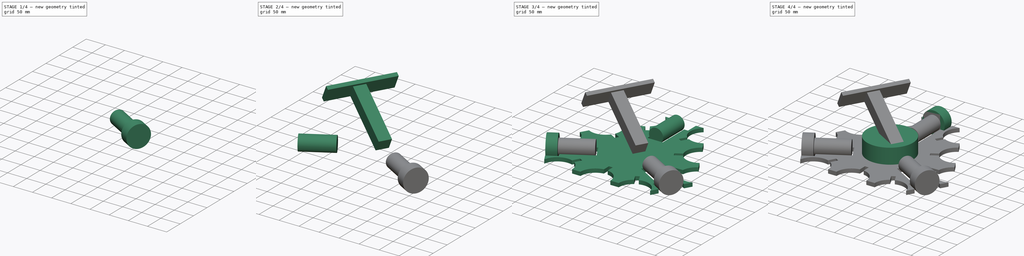
[diagram: build sequence overview — one tinted view per stage of 4, left to right]
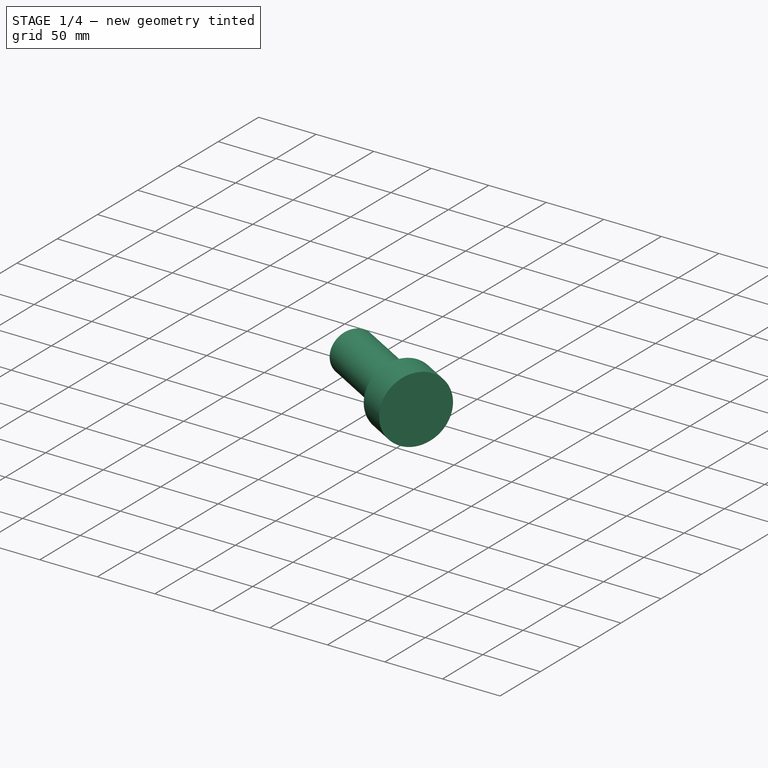
[diagram: stage 1 of 4 — iso view after this stage's code; geometry added in this stage tinted green]
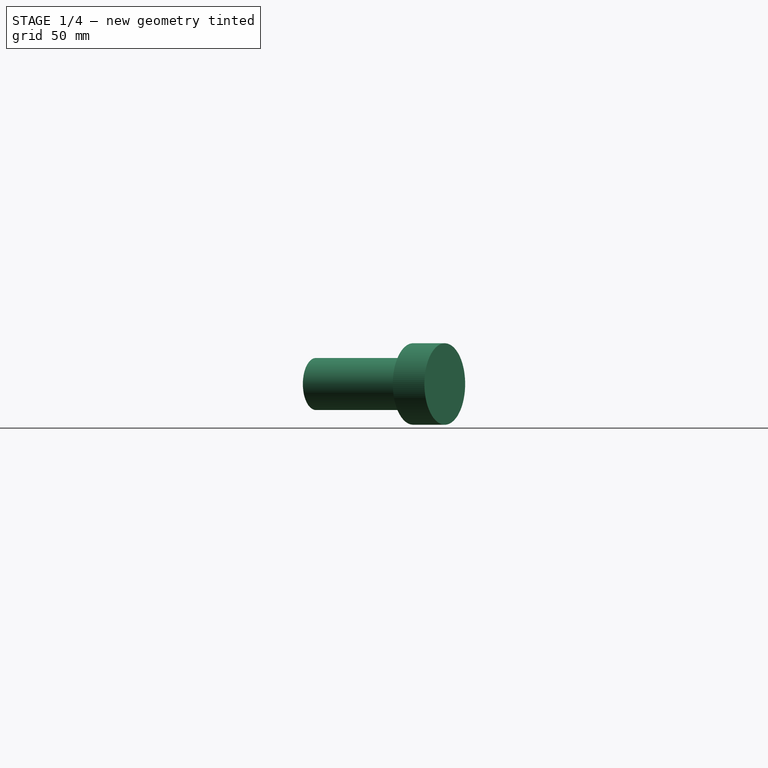
[diagram: stage 1 of 4 — front view after this stage's code; geometry added in this stage tinted green]
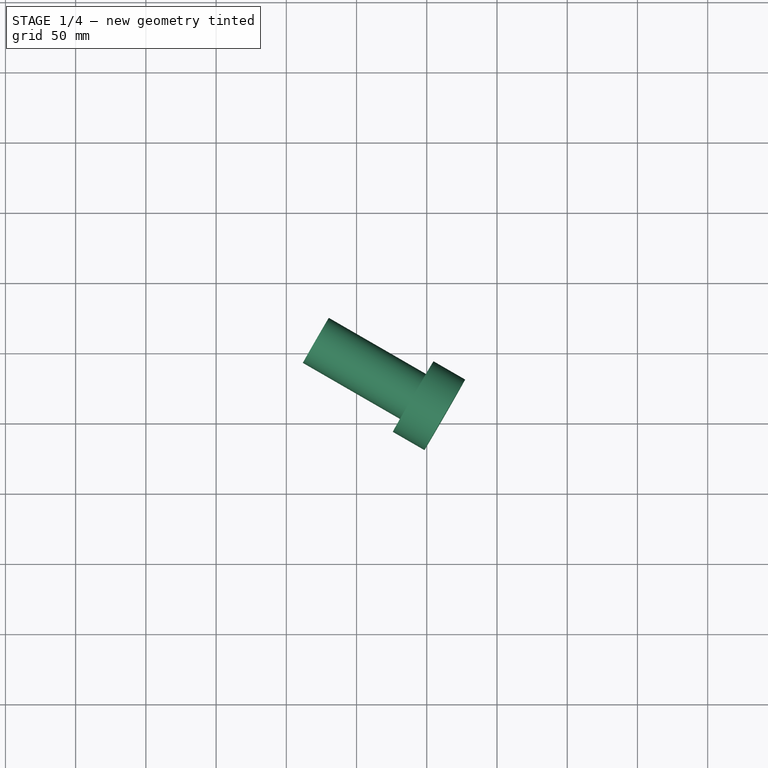
[diagram: stage 1 of 4 — top view after this stage's code; geometry added in this stage tinted green]
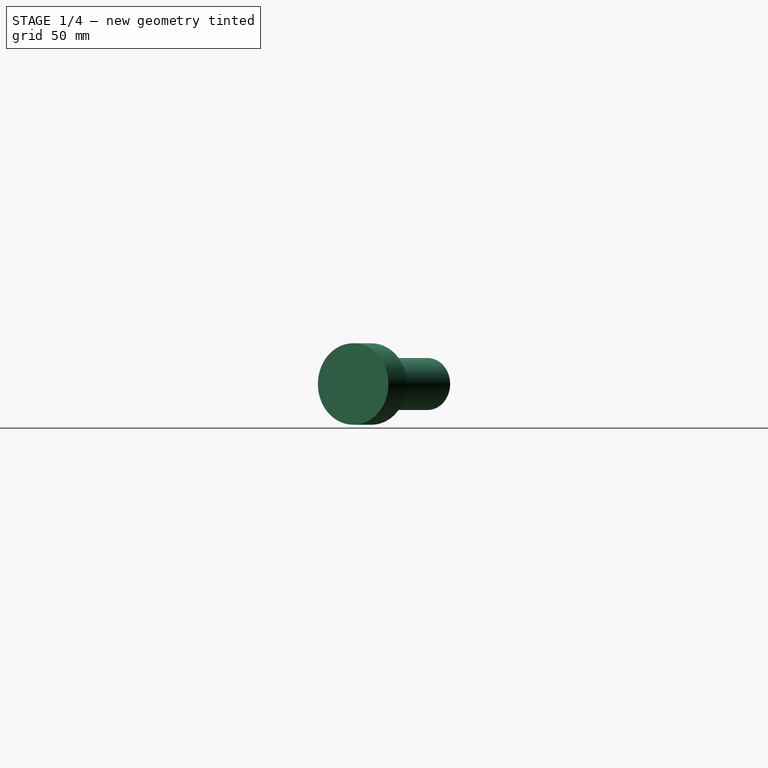
[diagram: stage 1 of 4 — right view after this stage's code; geometry added in this stage tinted green]
FCSTD DOCUMENT  (FreeCAD 0.17R13541 (Git))
Label: robot_principal_freecad
License: All rights reserved
LicenseURL: http://en.wikipedia.org/wiki/All_rights_reserved
objects: Part::Cylinder×7, Part::Feature×2, Part::Box×2, Sketcher::SketchObject×1, Part::Extrusion×1
note: 13 computed .brp shape members not serialized (recipe doc carries the construction recipe); baked Part::Feature solids carry a one-line shape summary decoded from their .brp

FEATURE [Part::Cylinder] Cylinder005  label="Roue002"
  Angle = 360
  AttacherType = Attacher::AttachEngine3D
  Height = 26
  Placement = pos=(162.812,-94.0007,28.9994) rot=(-0.377964,0.654652,0.654656;3.86432rad)
  Radius = 29
FEATURE [Part::Cylinder] Cylinder006  label="Moteur002"
  Angle = 360
  AttacherType = Attacher::AttachEngine3D
  Height = 80
  Placement = pos=(140.296,-81,29) rot=(-0.377964,0.654654,0.654654;3.86433rad)
  Radius = 18.5
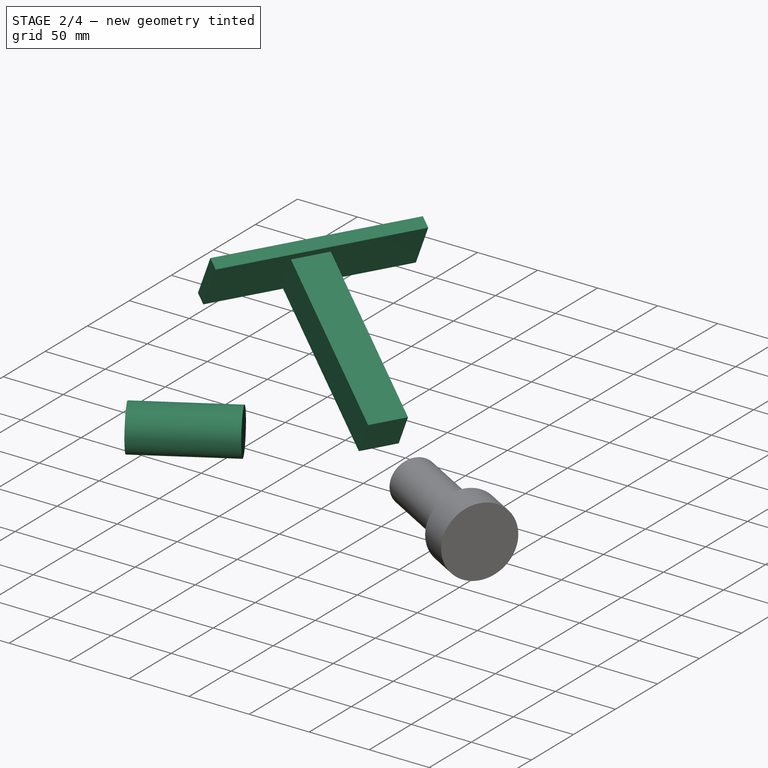
[diagram: stage 2 of 4 — iso view after this stage's code; geometry added in this stage tinted green]
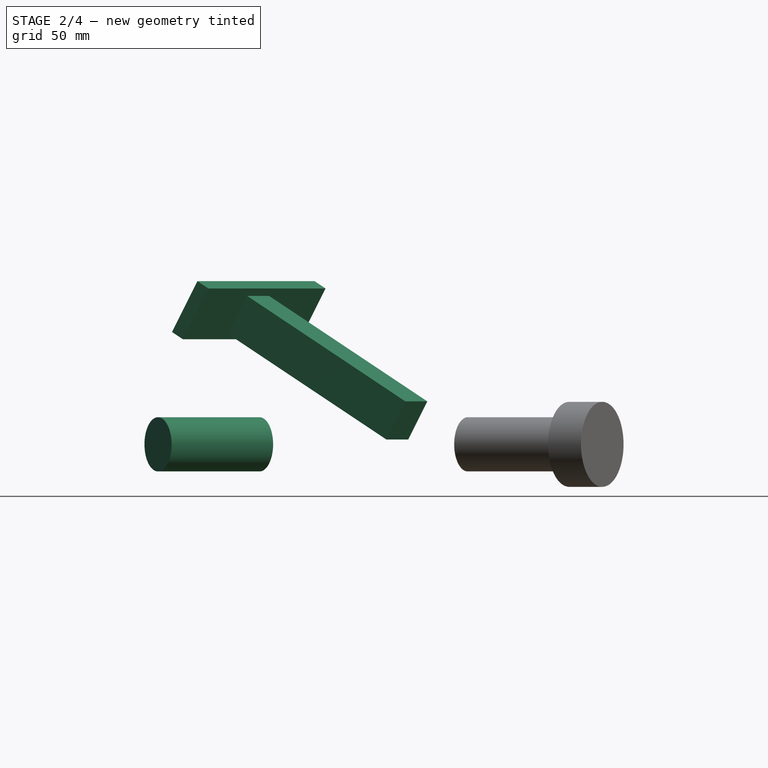
[diagram: stage 2 of 4 — front view after this stage's code; geometry added in this stage tinted green]
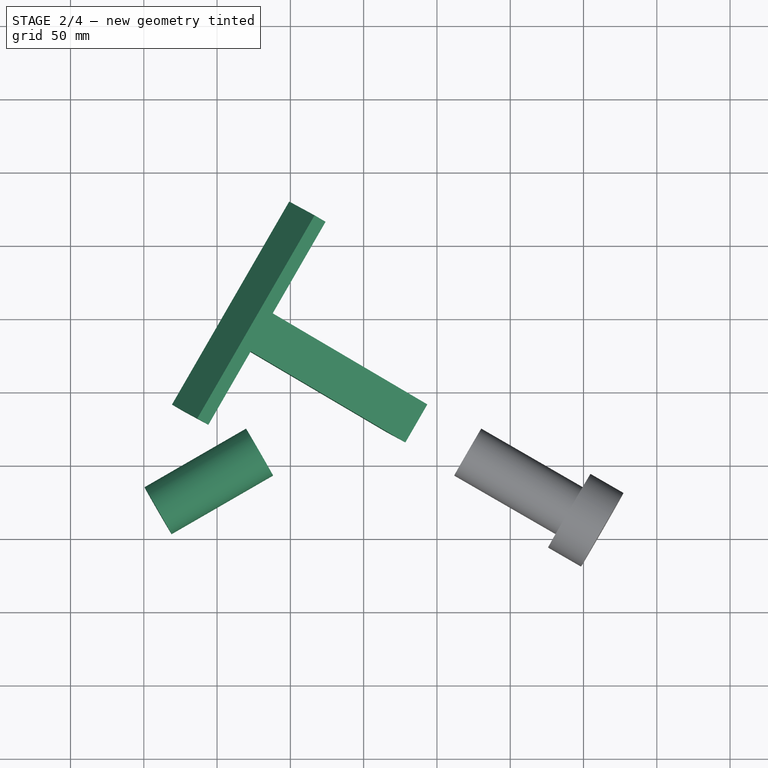
[diagram: stage 2 of 4 — top view after this stage's code; geometry added in this stage tinted green]
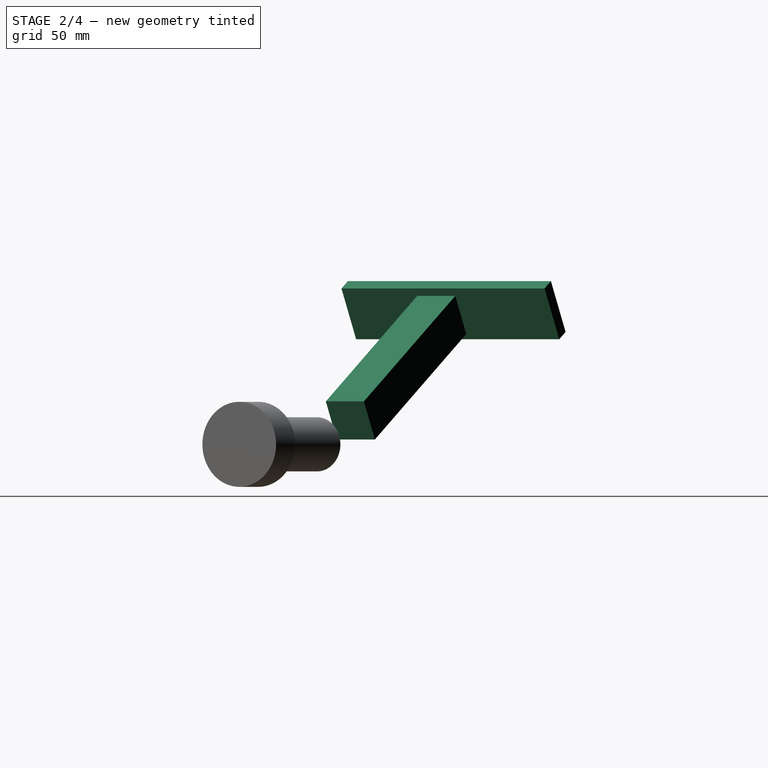
[diagram: stage 2 of 4 — right view after this stage's code; geometry added in this stage tinted green]
FEATURE [Part::Box] Box  label="Cube"
  AttacherType = Attacher::AttachEngine3D
  Height = 40
  Length = 160
  Placement = pos=(-123.293,-14.2364,100.67) rot=(-0.409065,-0.236174,-0.881412;5.12338rad)
  Width = 10
FEATURE [Part::Box] Box001  label="Cube001"
  AttacherType = Attacher::AttachEngine3D
  Height = 30
  Length = 30
  Placement = pos=(15.4821,-27.4138,32.3038) rot=(0.409065,0.236174,0.881412;1.1598rad)
  Width = 146
FEATURE [Part::Cylinder] Cylinder004  label="Moteur001"
  Angle = 360
  AttacherType = Attacher::AttachEngine3D
  Height = 80
  Placement = pos=(-140.296,-81,29) rot=(0.377964,0.654654,0.654654;2.41886rad)
  Radius = 18.5
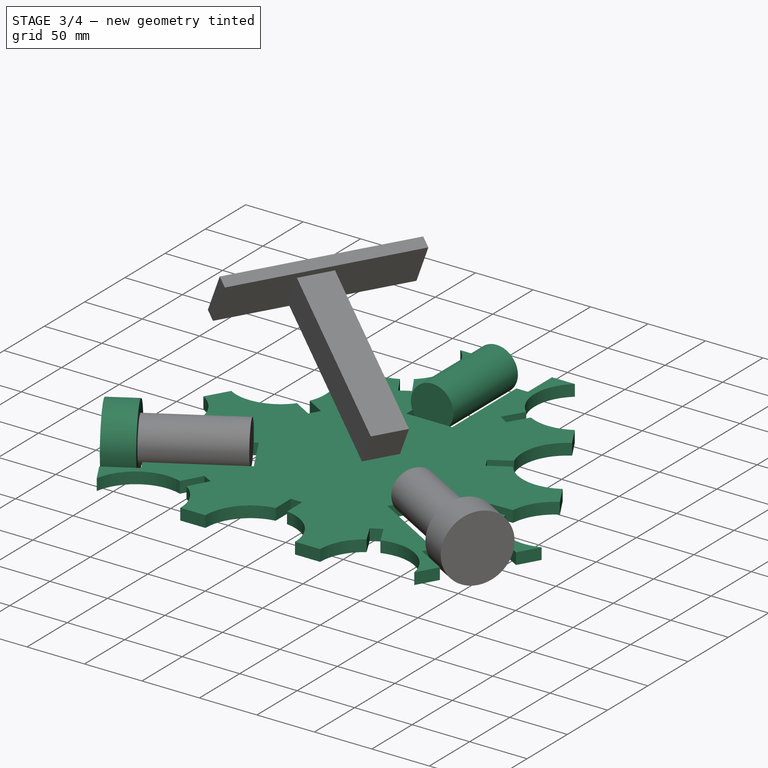
[diagram: stage 3 of 4 — iso view after this stage's code; geometry added in this stage tinted green]
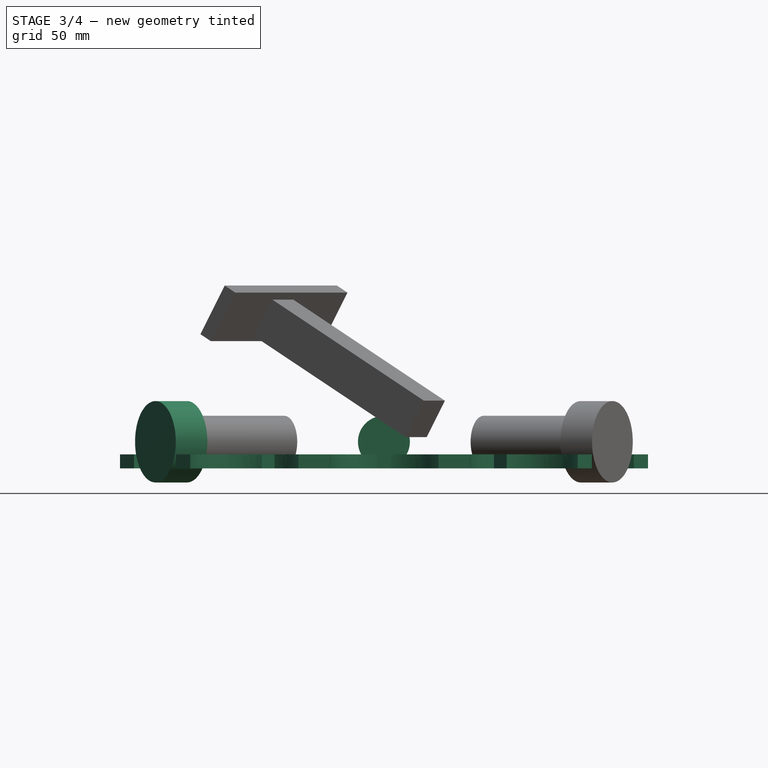
[diagram: stage 3 of 4 — front view after this stage's code; geometry added in this stage tinted green]
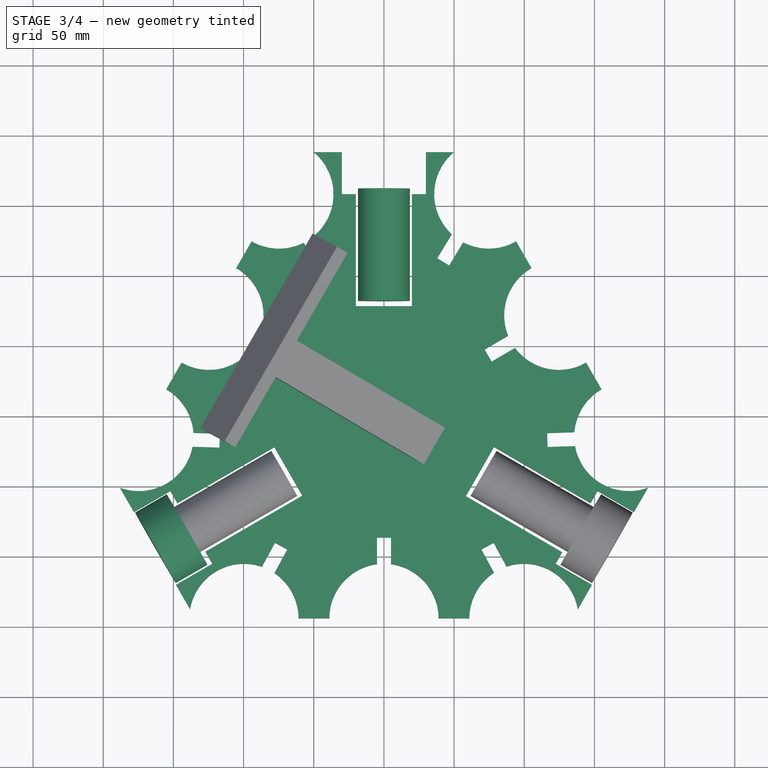
[diagram: stage 3 of 4 — top view after this stage's code; geometry added in this stage tinted green]
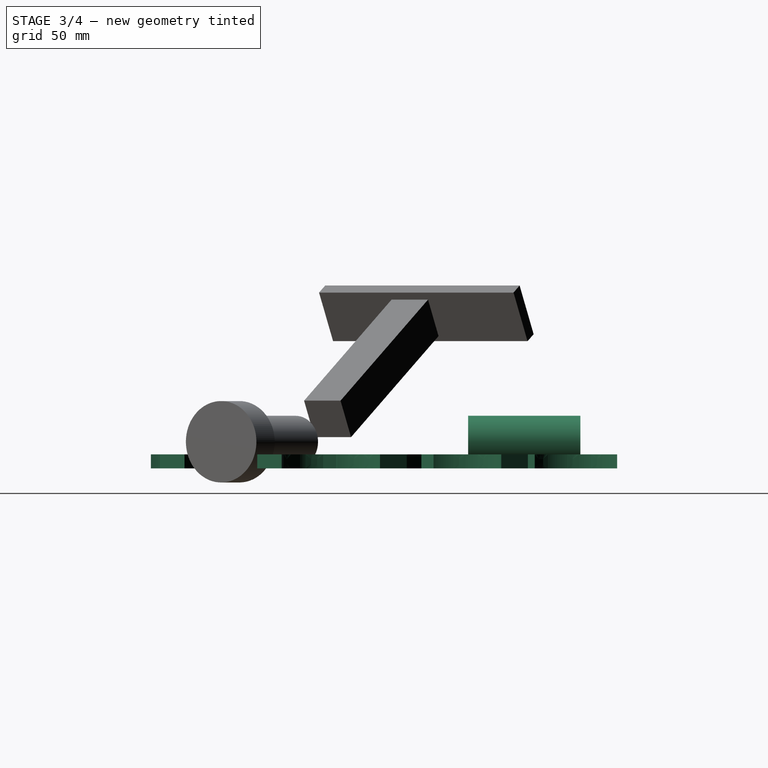
[diagram: stage 3 of 4 — right view after this stage's code; geometry added in this stage tinted green]
FEATURE [Part::Feature] Clone001  label="path118"
  Placement = pos=(-222,308,10) rot=(0,0,1;0rad)
  shape: bbox 424.4 x 374.7 x 3e-07 mm, 1 faces, 0 solids (baked)
FEATURE [Sketcher::SketchObject] Sketch
  Placement = pos=(0,0,60) rot=(0,0,1;0rad)
  sketch-geometry (3):
    g0: LineSegment StartX=0 StartY=0 StartZ=0 EndX=0 EndY=175 EndZ=0
    g1: LineSegment StartX=0 StartY=0 StartZ=0 EndX=151.554 EndY=-87.5 EndZ=0
    g2: LineSegment StartX=0 StartY=0 StartZ=0 EndX=-151.554 EndY=-87.5 EndZ=0
  constraints (9):
    c: Coincident(g2,g0)
    c: Coincident(g1,g0)
    c: Coincident(g0,g-1)
    c: Equal(g1,g0)
    c: Equal(g0,g2)
    c: Distance(g2) = 175
    c: PointOnObject(g0,g-2)
    c: Angle(g1,g0,g-1) = 2.0944
    c: Angle(g0,g2,g-1) = 2.0944
FEATURE [Part::Cylinder] Cylinder002  label="Moteur"
  Angle = 360
  AttacherType = Attacher::AttachEngine3D
  Height = 80
  Placement = pos=(0,162,29) rot=(1,0,0;1.5708rad)
  Radius = 18.5
FEATURE [Part::Feature] Clone002  label="Base"
  Placement = pos=(-197,276,10) rot=(0,0,1;0rad)
  shape: bbox 376.3 x 332.2 x 2.66e-07 mm, 1 faces, 0 solids (baked)
FEATURE [Part::Extrusion] Extrude
  Base = -> Clone002
  Dir = (0,0,1)
  DirMode = 0
  FaceMakerClass = Part::FaceMakerBullseye
  LengthFwd = 10
  LengthRev = 0
  Solid = false
  Symmetric = false
FEATURE [Part::Cylinder] Cylinder003  label="Roue001"
  Angle = 360
  AttacherType = Attacher::AttachEngine3D
  Height = 26
  Placement = pos=(-162.813,-93.9994,28.9994) rot=(0.377964,0.654654,0.654654;2.41885rad)
  Radius = 29
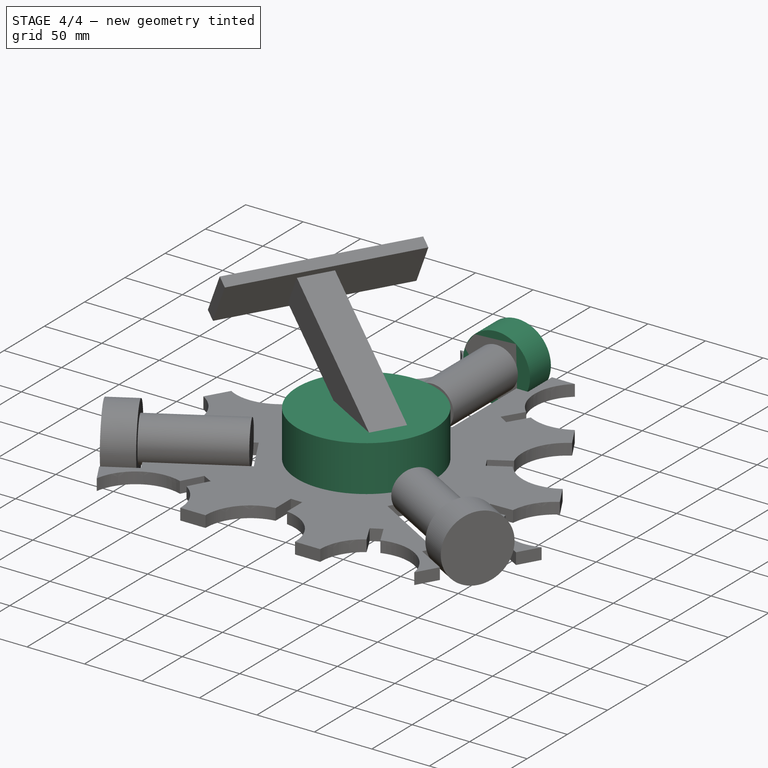
[diagram: stage 4 of 4 — iso view after this stage's code; geometry added in this stage tinted green]
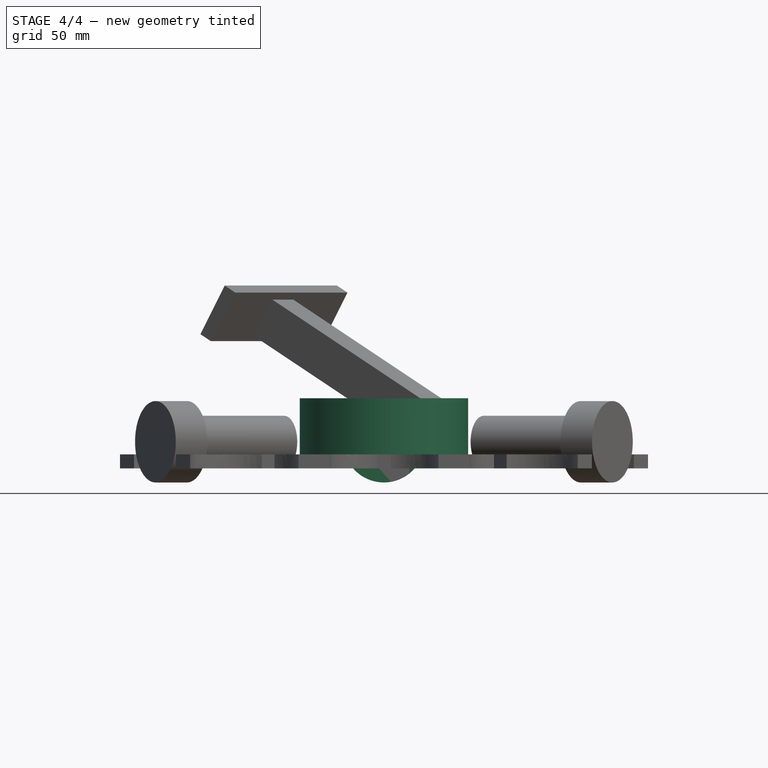
[diagram: stage 4 of 4 — front view after this stage's code; geometry added in this stage tinted green]
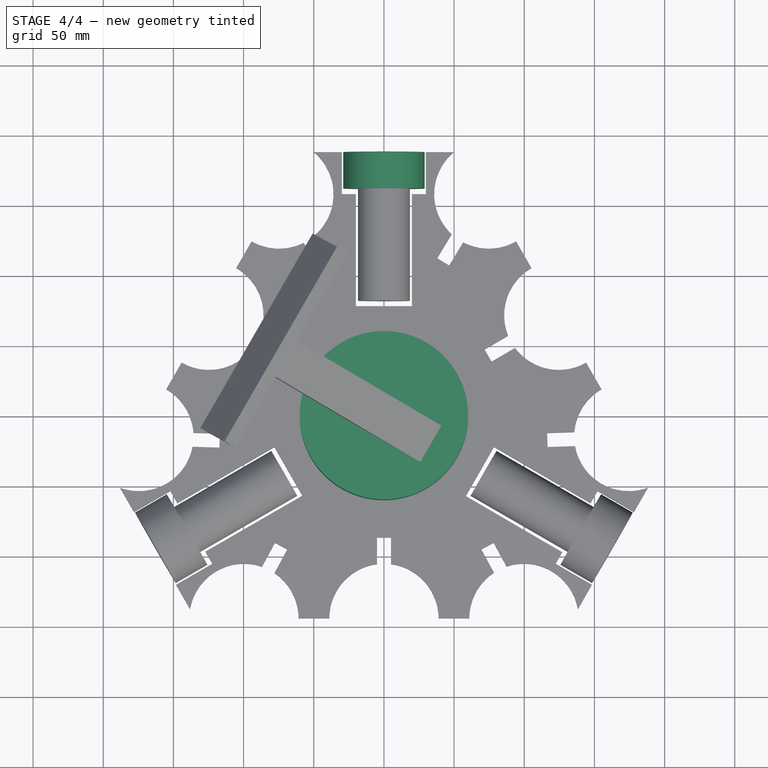
[diagram: stage 4 of 4 — top view after this stage's code; geometry added in this stage tinted green]
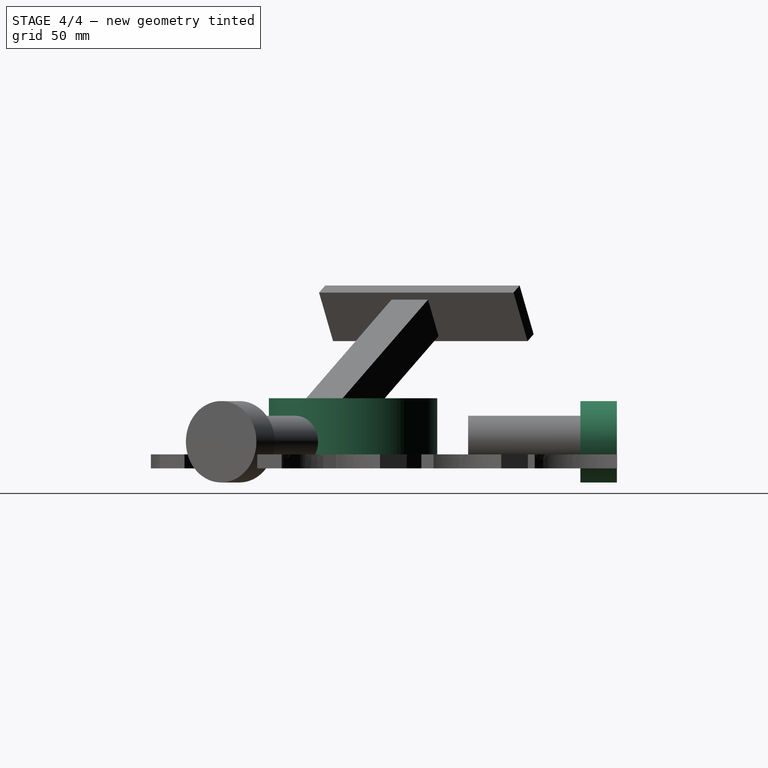
[diagram: stage 4 of 4 — right view after this stage's code; geometry added in this stage tinted green]
FEATURE [Part::Cylinder] Cylinder  label="Roue"
  Angle = 360
  AttacherType = Attacher::AttachEngine3D
  Height = 26
  Placement = pos=(0,188,29) rot=(1,0,0;1.5708rad)
  Radius = 29
FEATURE [Part::Cylinder] Cylinder001  label="Lidar"
  Angle = 360
  AttacherType = Attacher::AttachEngine3D
  Height = 40
  Placement = pos=(0,0,20) rot=(0,0,1;0rad)
  Radius = 60
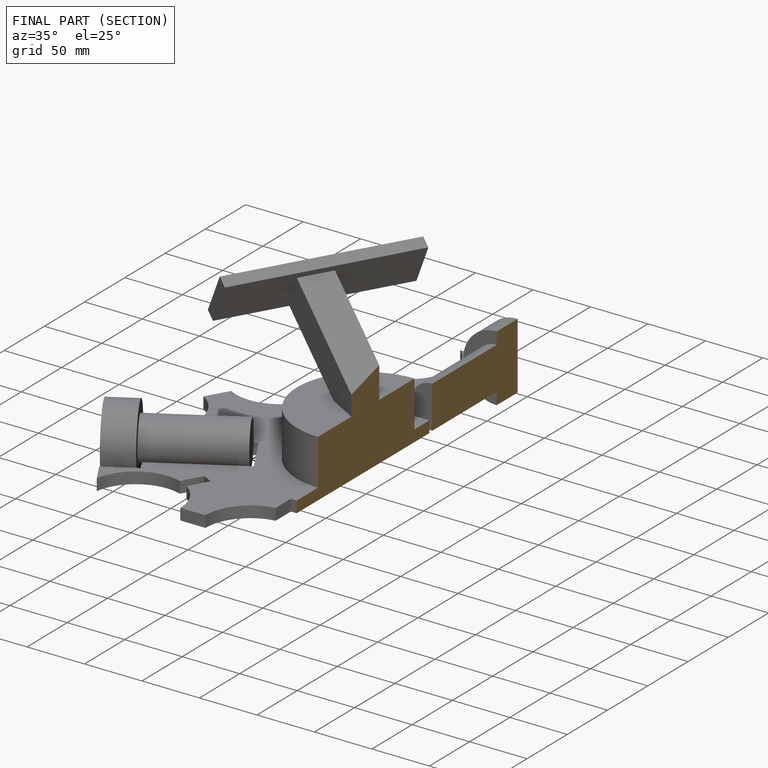
[diagram: finished part — half-section view (interior)]
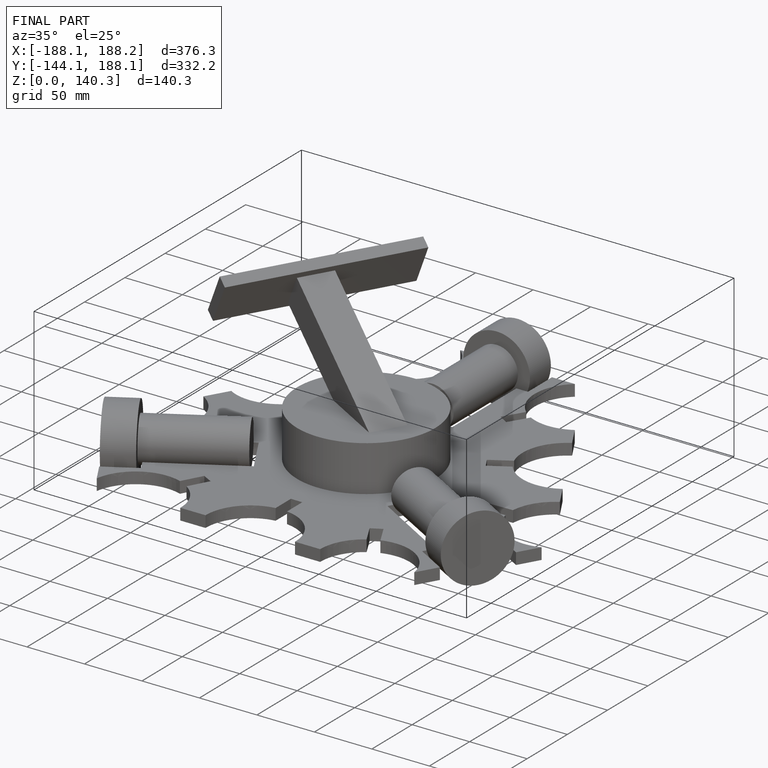
[diagram: finished part — iso view with bounding-box wireframe]
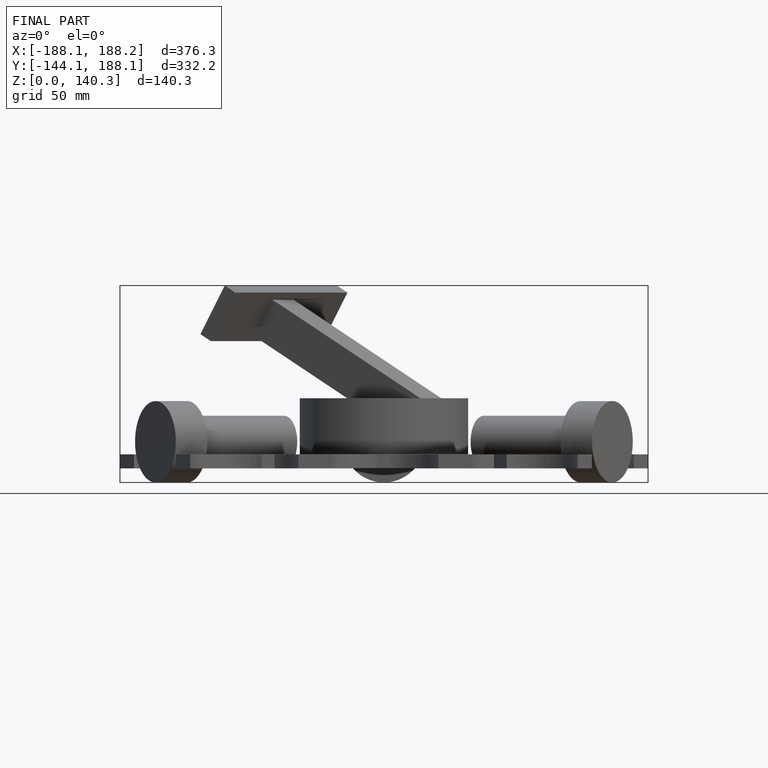
[diagram: finished part — front view with bounding-box wireframe]
